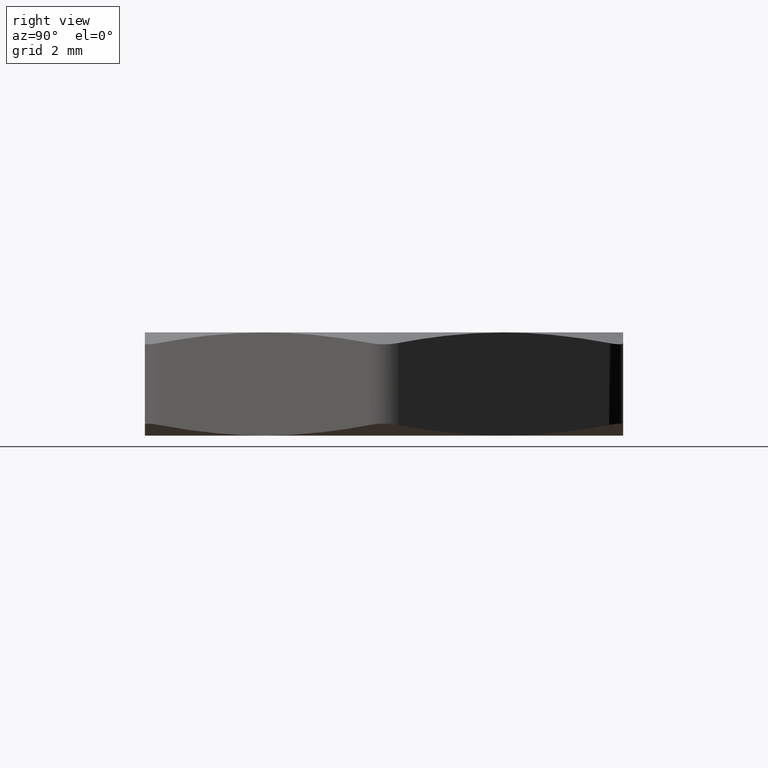
[diagram: clean part render]
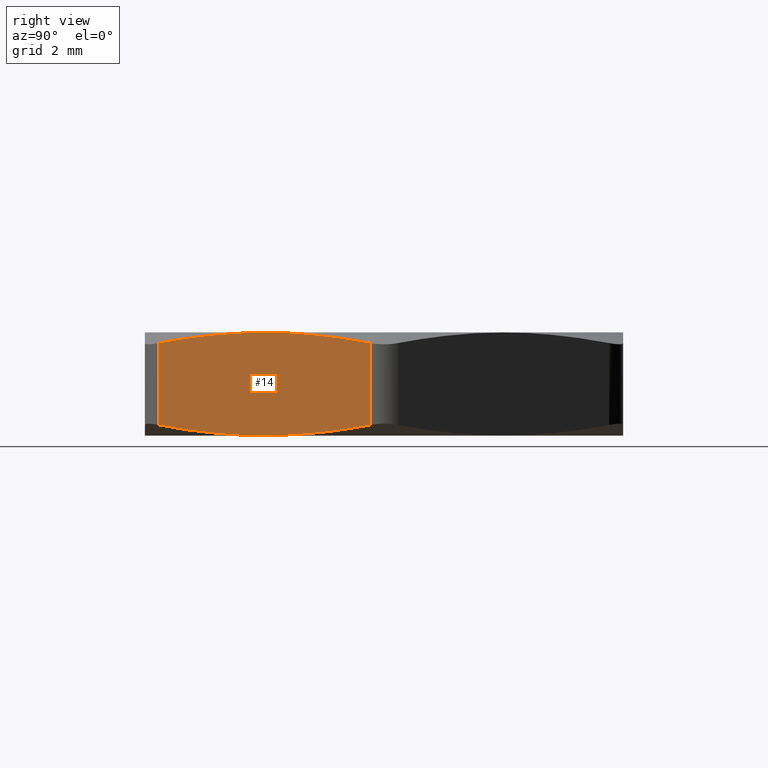
[diagram: same view with one face highlighted and labeled with its STEP entity id]
A machine part, right view. The second image highlights one B-rep face of the part: STEP entity #14.
In plain terms, the highlighted planar face has unit normal (-0.866, 0.5, 0).
Its self-contained STEP definition (entity closure, byte-faithful):
#1 = VERTEX_POINT ( 'NONE', #536 ) ;
#2 = VERTEX_POINT ( 'NONE', #535 ) ;
#3 = ORIENTED_EDGE ( 'NONE', *, *, #2334, .F. ) ;
#4 = VERTEX_POINT ( 'NONE', #534 ) ;
#5 = ORIENTED_EDGE ( 'NONE', *, *, #2335, .F. ) ;
#6 = VERTEX_POINT ( 'NONE', #533 ) ;
#7 = EDGE_CURVE ( 'NONE', #13, #6, #532, .T. ) ;
#8 = VERTEX_POINT ( 'NONE', #528 ) ;
#9 = ORIENTED_EDGE ( 'NONE', *, *, #7, .T. ) ;
#10 = EDGE_CURVE ( 'NONE', #13, #8, #526, .T. ) ;
#11 = EDGE_LOOP ( 'NONE', ( #12, #9, #5, #3, #47, #43 ) ) ;
#12 = ORIENTED_EDGE ( 'NONE', *, *, #10, .F. ) ;
#13 = VERTEX_POINT ( 'NONE', #525 ) ;
#14 = ADVANCED_FACE ( 'NONE', ( #527 ), #520, .F. ) ;
#43 = ORIENTED_EDGE ( 'NONE', *, *, #44, .F. ) ;
#44 = EDGE_CURVE ( 'NONE', #8, #4, #623, .T. ) ;
#47 = ORIENTED_EDGE ( 'NONE', *, *, #48, .T. ) ;
#48 = EDGE_CURVE ( 'NONE', #1, #4, #618, .T. ) ;
#516 = DIRECTION ( 'NONE',  ( -0.5000000000000002200, -0.8660254037844386000, 0.0000000000000000000 ) ) ;
#517 = DIRECTION ( 'NONE',  ( -0.8660254037844386000, 0.5000000000000002200, 0.0000000000000000000 ) ) ;
#518 = CARTESIAN_POINT ( 'NONE',  ( 0.1472243186433546700, -0.2549999999999997800, 0.1100000000000000000 ) ) ;
#519 = AXIS2_PLACEMENT_3D ( 'NONE', #518, #517, #516 ) ;
#520 = PLANE ( 'NONE',  #519 ) ;
#521 = CARTESIAN_POINT ( 'NONE',  ( 0.2208364779650318900, -0.1275000000000000900, 0.0000000000000000000 ) ) ;
#522 = CARTESIAN_POINT ( 'NONE',  ( 0.2424871130596428500, -0.08999999999999999700, -2.622555715912905100E-017 ) ) ;
#523 = CARTESIAN_POINT ( 'NONE',  ( 0.2641377481542538400, -0.05249999999999996300, 0.004195273691761800900 ) ) ;
#524 = CARTESIAN_POINT ( 'NONE',  ( 0.2857883832488648500, -0.01499999999999993200, 0.01134923264675020600 ) ) ;
#525 = CARTESIAN_POINT ( 'NONE',  ( 0.2857883832488648500, -0.01499999999999993200, 0.01134923264675020600 ) ) ;
#526 = B_SPLINE_CURVE_WITH_KNOTS ( 'NONE', 3,
 ( #524, #523, #522, #521 ),
 .UNSPECIFIED., .F., .F.,
 ( 4, 4 ),
 ( 2.309401076744511900E-007, 0.003299787728526389200 ),
 .UNSPECIFIED. ) ;
#527 = FACE_OUTER_BOUND ( 'NONE', #11, .T. ) ;
#528 = CARTESIAN_POINT ( 'NONE',  ( 0.2208364779650318900, -0.1275000000000000900, 0.0000000000000000000 ) ) ;
#529 = DIRECTION ( 'NONE',  ( 0.0000000000000000000, 0.0000000000000000000, 1.000000000000000000 ) ) ;
#530 = VECTOR ( 'NONE', #529, 39.37007874015748100 ) ;
#531 = CARTESIAN_POINT ( 'NONE',  ( 0.2857883832488648500, -0.01499999999999994200, 0.1100000000000000000 ) ) ;
#532 = LINE ( 'NONE', #531, #530 ) ;
#533 = CARTESIAN_POINT ( 'NONE',  ( 0.2857883832488648500, -0.01499999999999993400, 0.09865076735324980500 ) ) ;
#534 = CARTESIAN_POINT ( 'NONE',  ( 0.1558845726811990400, -0.2399999999999998200, 0.01134923264675015600 ) ) ;
#535 = CARTESIAN_POINT ( 'NONE',  ( 0.2208364779650318400, -0.1275000000000000300, 0.1100000000000000000 ) ) ;
#536 = CARTESIAN_POINT ( 'NONE',  ( 0.1558845726811990400, -0.2399999999999998200, 0.09865076735324986000 ) ) ;
#615 = DIRECTION ( 'NONE',  ( 0.0000000000000000000, 0.0000000000000000000, -1.000000000000000000 ) ) ;
#616 = VECTOR ( 'NONE', #615, 39.37007874015748100 ) ;
#617 = CARTESIAN_POINT ( 'NONE',  ( 0.1558845726811990400, -0.2399999999999998200, 0.1100000000000000000 ) ) ;
#618 = LINE ( 'NONE', #617, #616 ) ;
#619 = CARTESIAN_POINT ( 'NONE',  ( 0.1558845726811990400, -0.2399999999999998200, 0.01134923264675015600 ) ) ;
#620 = CARTESIAN_POINT ( 'NONE',  ( 0.1775352077758099700, -0.2024999999999999300, 0.004195273691761774800 ) ) ;
#621 = CARTESIAN_POINT ( 'NONE',  ( 0.1991858428704209300, -0.1649999999999999500, -2.970279448118073000E-017 ) ) ;
#622 = CARTESIAN_POINT ( 'NONE',  ( 0.2208364779650318900, -0.1275000000000000900, 0.0000000000000000000 ) ) ;
#623 = B_SPLINE_CURVE_WITH_KNOTS ( 'NONE', 3,
 ( #622, #621, #620, #619 ),
 .UNSPECIFIED., .F., .F.,
 ( 4, 4 ),
 ( 0.003299787728526389200, 0.006599344516945094400 ),
 .UNSPECIFIED. ) ;
#1971 = CARTESIAN_POINT ( 'NONE',  ( 0.2857883832488648500, -0.01499999999999993400, 0.09865076735324980500 ) ) ;
#1972 = CARTESIAN_POINT ( 'NONE',  ( 0.2641377481542538400, -0.05249999999999997700, 0.1058047263082382100 ) ) ;
#1973 = CARTESIAN_POINT ( 'NONE',  ( 0.2424871130596428500, -0.08999999999999999700, 0.1100000000000000400 ) ) ;
#1974 = CARTESIAN_POINT ( 'NONE',  ( 0.2208364779650318400, -0.1275000000000000300, 0.1100000000000000000 ) ) ;
#1975 = B_SPLINE_CURVE_WITH_KNOTS ( 'NONE', 3,
 ( #1974, #1973, #1972, #1971 ),
 .UNSPECIFIED., .F., .F.,
 ( 4, 4 ),
 ( 0.003299787728526380900, 0.006599344516945095300 ),
 .UNSPECIFIED. ) ;
#1977 = CARTESIAN_POINT ( 'NONE',  ( 0.2208364779650318400, -0.1275000000000000300, 0.1100000000000000000 ) ) ;
#1978 = CARTESIAN_POINT ( 'NONE',  ( 0.1991858428704209300, -0.1649999999999999500, 0.1100000000000000400 ) ) ;
#1979 = CARTESIAN_POINT ( 'NONE',  ( 0.1775352077758099700, -0.2024999999999999000, 0.1058047263082382300 ) ) ;
#1980 = CARTESIAN_POINT ( 'NONE',  ( 0.1558845726811990400, -0.2399999999999998200, 0.09865076735324986000 ) ) ;
#1981 = B_SPLINE_CURVE_WITH_KNOTS ( 'NONE', 3,
 ( #1980, #1979, #1978, #1977 ),
 .UNSPECIFIED., .F., .F.,
 ( 4, 4 ),
 ( 2.309401076756359800E-007, 0.003299787728526380900 ),
 .UNSPECIFIED. ) ;
#2334 = EDGE_CURVE ( 'NONE', #1, #2, #1981, .T. ) ;
#2335 = EDGE_CURVE ( 'NONE', #2, #6, #1975, .T. ) ;